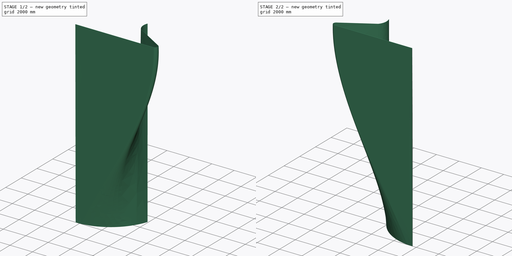
[diagram: build sequence overview — one tinted view per stage of 2, left to right]
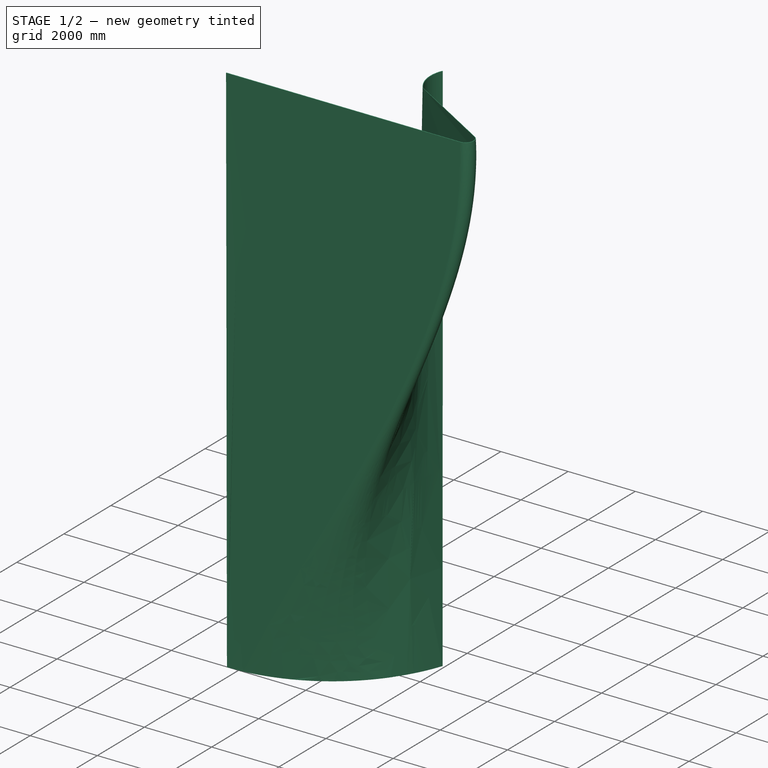
[diagram: stage 1 of 2 — iso view after this stage's code; geometry added in this stage tinted green]
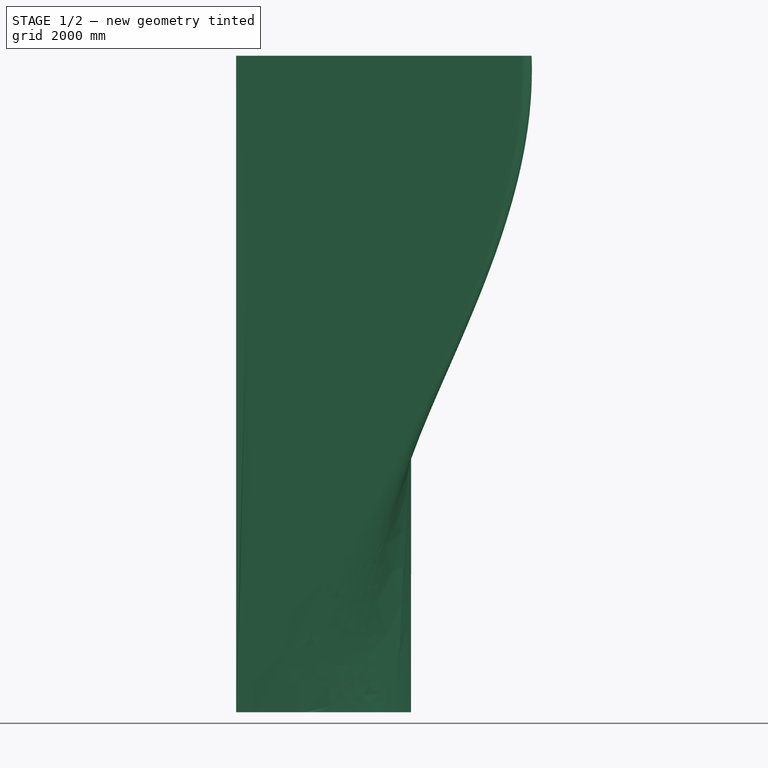
[diagram: stage 1 of 2 — front view after this stage's code; geometry added in this stage tinted green]
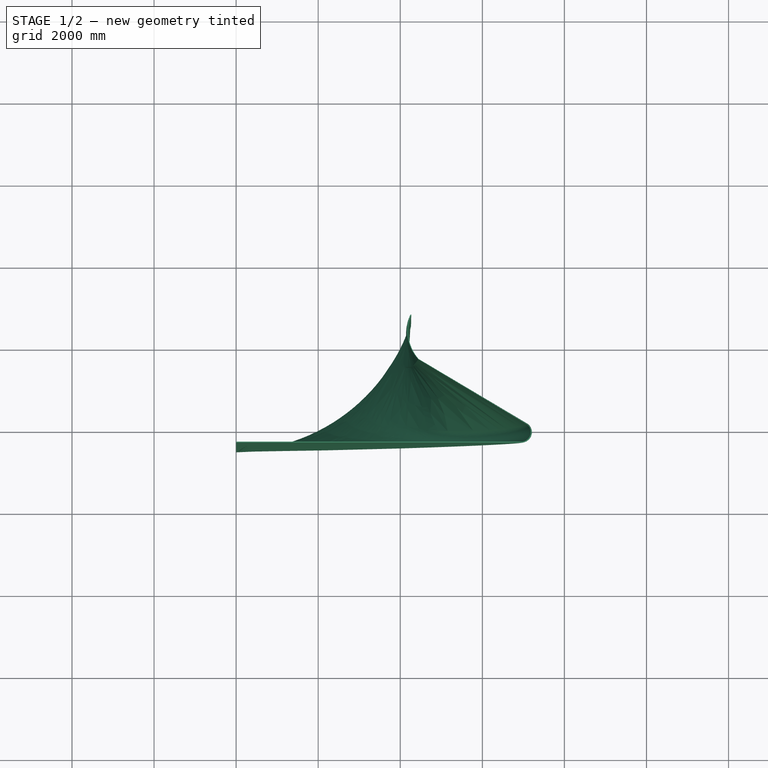
[diagram: stage 1 of 2 — top view after this stage's code; geometry added in this stage tinted green]
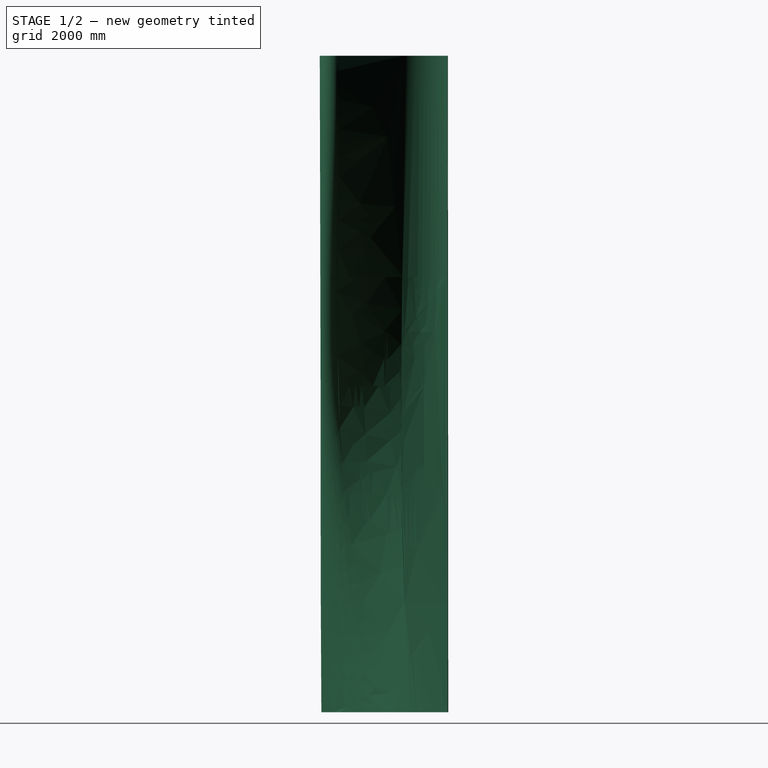
[diagram: stage 1 of 2 — right view after this stage's code; geometry added in this stage tinted green]
FCSTD DOCUMENT  (FreeCAD 0.17R13509 (Git))
Label: test
License: All rights reserved
LicenseURL: http://en.wikipedia.org/wiki/All_rights_reserved
objects: Sketcher::SketchObject×6, Part::Loft×1, Part::Mirroring×1
note: 8 computed .brp shape members not serialized (recipe doc carries the construction recipe); baked Part::Feature solids carry a one-line shape summary decoded from their .brp

FEATURE [Sketcher::SketchObject] Sketch
  sketch-geometry (5):
    g0: Circle CenterX=0 CenterY=0 CenterZ=0 NormalX=0 NormalY=0 NormalZ=1 AngleXU=0 Radius=4500
    g1: LineSegment StartX=0 StartY=-4500 StartZ=0 EndX=7200 EndY=-4500 EndZ=0
    g2: LineSegment StartX=0 StartY=-4500 StartZ=0 EndX=0 EndY=-4530 EndZ=0
    g3: LineSegment StartX=3971.47 StartY=-2122.01 StartZ=0 EndX=3971.47 EndY=-4502.01 EndZ=0
    g4: LineSegment StartX=7200 StartY=-4500 StartZ=0 EndX=7200 EndY=-4017.08 EndZ=0
  constraints (9):
    c: Coincident(g0,g-1)
    c: PointOnObject(g1,g0)
    c: Horizontal(g1)
    c: Coincident(g2,g1)
    c: PointOnObject(g2,g-2)
    c: Vertical(g2)
    c: Vertical(g3)
    c: Coincident(g4,g1)
    c: Vertical(g4)
FEATURE [Sketcher::SketchObject] Sketch001  label="1"
  sketch-geometry (10):
    g0: ArcOfCircle CenterX=6950.18 CenterY=-4281.47 CenterZ=0 NormalX=0 NormalY=0 NormalZ=1 AngleXU=0 Radius=250 StartAngle=4.75272 EndAngle=7.37071
    g1: LineSegment StartX=7066.35 StartY=-4060.1 StartZ=0 EndX=4445.03 EndY=-2494.22 EndZ=0
    g2: LineSegment StartX=6960.26 StartY=-4531.26 StartZ=0 EndX=0 EndY=-4531.26 EndZ=0
    g3: ArcOfCircle CenterX=5232.03 CenterY=-1811.49 CenterZ=0 NormalX=0 NormalY=0 NormalZ=1 AngleXU=0 Radius=1041.87 StartAngle=2.75379 EndAngle=3.85616
    g4: LineSegment StartX=4440.34 StartY=-2502.79 StartZ=0 EndX=7052.31 EndY=-4068.86 EndZ=0
    g5: LineSegment StartX=6959.72 StartY=-4510.77 StartZ=0 EndX=-0.206419 EndY=-4509.82 EndZ=0
    g6: LineSegment StartX=-0.206419 StartY=-4509.82 StartZ=0 EndX=0 EndY=-4531.26 EndZ=0
    g7: ArcOfCircle CenterX=6945.32 CenterY=-4277.1 CenterZ=0 NormalX=0 NormalY=0 NormalZ=1 AngleXU=0 Radius=234.112 StartAngle=4.77393 EndAngle=7.37939
    g8: ArcOfCircle CenterX=5200.72 CenterY=-1805.66 CenterZ=0 NormalX=0 NormalY=0 NormalZ=1 AngleXU=0 Radius=1031.58 StartAngle=2.74812 EndAngle=3.88363
    g9: LineSegment StartX=4247.97 StartY=-1410.15 StartZ=0 EndX=4267.53 EndY=-1417.51 EndZ=0
  constraints (15):
    c: Coincident(g1,g0)
    c: Coincident(g2,g0)
    c: PointOnObject(g2,g-2)
    c: Horizontal(g2)
    c: Radius(g0) = 250
    c: Angle(g0) = 2.61799
    c: PointOnObject(g3,g1)
    c: Coincident(g1,g3)
    c: Coincident(g6,g2)
    c: Coincident(g5,g6)
    c: Coincident(g5,g7)
    c: Coincident(g4,g7)
    c: Coincident(g4,g8)
    c: Coincident(g8,g9)
    c: Coincident(g3,g9)
FEATURE [Sketcher::SketchObject] Sketch002  label="4"
  Placement = pos=(0,0,-16000) rot=(0,0,1;0rad)
  sketch-geometry (4):
    g0: ArcOfCircle CenterX=0 CenterY=0 CenterZ=0 NormalX=0 NormalY=0 NormalZ=1 AngleXU=0 Radius=4499.66 StartAngle=4.7123 EndAngle=5.96559
    g1: ArcOfCircle CenterX=-2.97512 CenterY=10.853 CenterZ=0 NormalX=0 NormalY=0 NormalZ=1 AngleXU=0 Radius=4469.64 StartAngle=4.71297 EndAngle=5.96218
    g2: LineSegment StartX=4238.35 StartY=-1399.41 StartZ=0 EndX=4274.62 EndY=-1405.17 EndZ=0
    g3: LineSegment StartX=-0.378864 StartY=-4458.79 StartZ=0 EndX=-0.378864 EndY=-4499.66 EndZ=0
  constraints (5):
    c: Coincident(g0,g-1)
    c: Coincident(g2,g0)
    c: Coincident(g1,g2)
    c: Coincident(g1,g3)
    c: Coincident(g3,g0)
FEATURE [Sketcher::SketchObject] Sketch003  label="2"
  Placement = pos=(0,0,-2000) rot=(0,0,1;0rad)
  sketch-geometry (10):
    g0: ArcOfCircle CenterX=6821.47 CenterY=-4268.08 CenterZ=0 NormalX=0 NormalY=0 NormalZ=1 AngleXU=0 Radius=250 StartAngle=4.7678 EndAngle=7.38579
    g1: LineSegment StartX=6934.29 StartY=-4044.98 StartZ=0 EndX=4445.69 EndY=-2494.21 EndZ=0
    g2: LineSegment StartX=6835.31 StartY=-4517.7 StartZ=0 EndX=0 EndY=-4517.7 EndZ=0
    g3: ArcOfCircle CenterX=5231.86 CenterY=-1811.96 CenterZ=0 NormalX=0 NormalY=0 NormalZ=1 AngleXU=0 Radius=1040.93 StartAngle=2.75379 EndAngle=3.85634
    g4: LineSegment StartX=0 StartY=-4517.7 StartZ=0 EndX=-0.205376 EndY=-4475.69 EndZ=0
    g5: LineSegment StartX=-0.205376 StartY=-4475.69 StartZ=0 EndX=6838.16 EndY=-4488.99 EndZ=0
    g6: ArcOfCircle CenterX=6816.08 CenterY=-4280.65 CenterZ=0 NormalX=0 NormalY=0 NormalZ=1 AngleXU=0 Radius=209.506 StartAngle=4.81796 EndAngle=7.39926
    g7: LineSegment StartX=6908.1 StartY=-4092.43 StartZ=0 EndX=4417.59 EndY=-2528.96 EndZ=0
    g8: ArcOfCircle CenterX=5196.99 CenterY=-1822.58 CenterZ=0 NormalX=0 NormalY=0 NormalZ=1 AngleXU=0 Radius=1051.88 StartAngle=2.73116 EndAngle=3.87788
    g9: LineSegment StartX=4232.47 StartY=-1402.88 StartZ=0 EndX=4268.23 EndY=-1418.33 EndZ=0
  constraints (15):
    c: Coincident(g1,g0)
    c: Coincident(g2,g0)
    c: PointOnObject(g2,g-2)
    c: Horizontal(g2)
    c: Radius(g0) = 250
    c: Angle(g0) = 2.61799
    c: PointOnObject(g3,g1)
    c: Coincident(g1,g3)
    c: Coincident(g4,g5)
    c: Coincident(g3,g9)
    c: Coincident(g8,g9)
    c: Coincident(g8,g7)
    c: Coincident(g6,g7)
    c: Coincident(g5,g6)
    c: Coincident(g2,g4)
FEATURE [Sketcher::SketchObject] Sketch004  label="3"
  Placement = pos=(0,0,-10000) rot=(0,0,1;0rad)
  sketch-geometry (10):
    g0: ArcOfCircle CenterX=3700.57 CenterY=-4012 CenterZ=0 NormalX=0 NormalY=0 NormalZ=1 AngleXU=0 Radius=500 StartAngle=4.78422 EndAngle=6.35502
    g1: LineSegment StartX=4199.28 StartY=-3976.11 StartZ=0 EndX=4225.9 EndY=-2537.19 EndZ=0
    g2: LineSegment StartX=3736.46 StartY=-4510.71 StartZ=0 EndX=0 EndY=-4510.71 EndZ=0
    g3: ArcOfCircle CenterX=9687.22 CenterY=-2142.79 CenterZ=0 NormalX=0 NormalY=0 NormalZ=1 AngleXU=0 Radius=5475.54 StartAngle=3.00961 EndAngle=3.21368
    g4: LineSegment StartX=0 StartY=-4510.71 StartZ=0 EndX=-0.084267 EndY=-4467.08 EndZ=0
    g5: LineSegment StartX=-0.084267 StartY=-4467.08 StartZ=0 EndX=3733.74 EndY=-4493.1 EndZ=0
    g6: ArcOfCircle CenterX=3675.66 CenterY=-3989.85 CenterZ=0 NormalX=0 NormalY=0 NormalZ=1 AngleXU=0 Radius=506.589 StartAngle=4.8273 EndAngle=6.3216
    g7: LineSegment StartX=4181.87 StartY=-3970.4 StartZ=0 EndX=4193.71 EndY=-2533.48 EndZ=0
    g8: ArcOfCircle CenterX=9585.51 CenterY=-2200.75 CenterZ=0 NormalX=0 NormalY=0 NormalZ=1 AngleXU=0 Radius=5402.05 StartAngle=2.99597 EndAngle=3.20322
    g9: LineSegment StartX=4240.63 StartY=-1416.87 StartZ=0 EndX=4259.3 EndY=-1422.2 EndZ=0
  constraints (15):
    c: Coincident(g1,g0)
    c: Coincident(g2,g0)
    c: PointOnObject(g2,g-2)
    c: Horizontal(g2)
    c: Radius(g0) = 500
    c: PointOnObject(g3,g1)
    c: Coincident(g1,g3)
    c: Angle(g0) = 1.5708
    c: Coincident(g7,g8)
    c: Coincident(g9,g8)
    c: Coincident(g3,g9)
    c: Coincident(g6,g7)
    c: Coincident(g6,g5)
    c: Coincident(g4,g5)
    c: Coincident(g2,g4)
FEATURE [Sketcher::SketchObject] Sketch005  label="4b"
  Placement = pos=(0,0,-16000) rot=(0,0,1;0rad)
  sketch-geometry (10):
    g0: ArcOfCircle CenterX=128.259 CenterY=-19.4187 CenterZ=0 NormalX=0 NormalY=0 NormalZ=1 AngleXU=0 Radius=4362.86 StartAngle=5.72794 EndAngle=5.9574
    g1: LineSegment StartX=3835.7 StartY=-2319.29 StartZ=0 EndX=3596.69 EndY=-2680.07 EndZ=0
    g2: ArcOfCircle CenterX=0.364116 CenterY=-8.92071 CenterZ=0 NormalX=0 NormalY=0 NormalZ=1 AngleXU=0 Radius=4479.79 StartAngle=4.81457 EndAngle=5.64434
    g3: LineSegment StartX=457.307 StartY=-4465.35 StartZ=0 EndX=-0.011144 EndY=-4492.76 EndZ=0
    g4: LineSegment StartX=-0.011144 StartY=-4492.76 StartZ=0 EndX=-0.035145 EndY=-4456.49 EndZ=0
    g5: LineSegment StartX=-0.035145 StartY=-4456.49 StartZ=0 EndX=89.7661 EndY=-4451.32 EndZ=0
    g6: ArcOfCircle CenterX=-23.1098 CenterY=39.0629 CenterZ=0 NormalX=0 NormalY=0 NormalZ=1 AngleXU=0 Radius=4491.8 StartAngle=4.73752 EndAngle=5.63913
    g7: LineSegment StartX=3568.84 StartY=-2658 StartZ=0 EndX=3804.77 EndY=-2306.3 EndZ=0
    g8: ArcOfCircle CenterX=837.563 CenterY=-373.043 CenterZ=0 NormalX=0 NormalY=0 NormalZ=1 AngleXU=0 Radius=3541.45 StartAngle=5.70573 EndAngle=5.98861
    g9: LineSegment StartX=4226.46 StartY=-1401.25 StartZ=0 EndX=4261.62 EndY=-1415.78 EndZ=0
  constraints (10):
    c: Coincident(g8,g9)
    c: Coincident(g0,g9)
    c: Coincident(g1,g0)
    c: Coincident(g7,g8)
    c: Coincident(g6,g7)
    c: Coincident(g1,g2)
    c: Coincident(g2,g3)
    c: Coincident(g5,g6)
    c: Coincident(g5,g4)
    c: Coincident(g3,g4)
FEATURE [Part::Loft] Loft
  Closed = false
  MaxDegree = 5
  Ruled = false
  Sections = -> [Sketch001,Sketch003,Sketch004,Sketch005]
  Solid = true
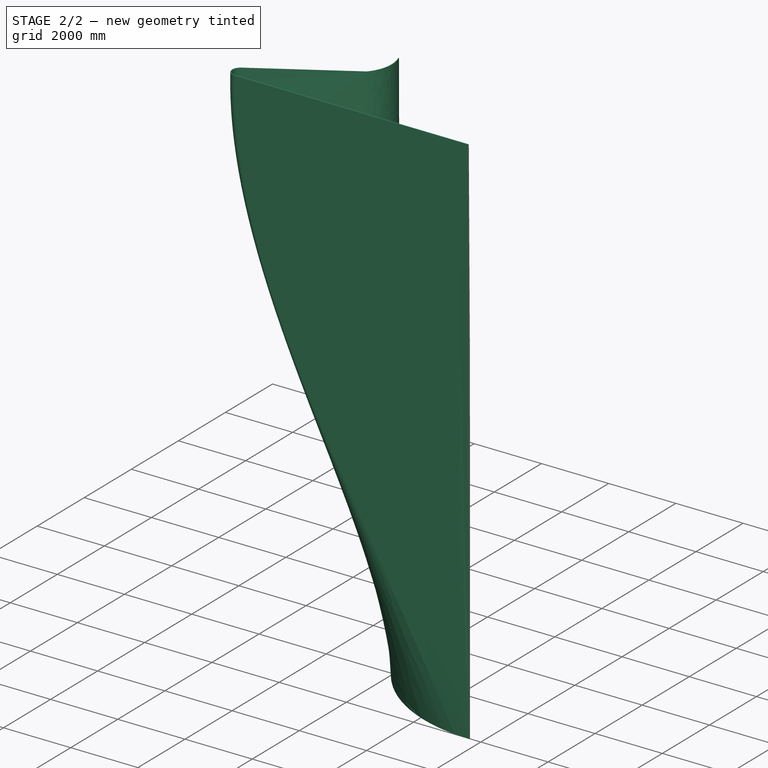
[diagram: stage 2 of 2 — iso view after this stage's code; geometry added in this stage tinted green]
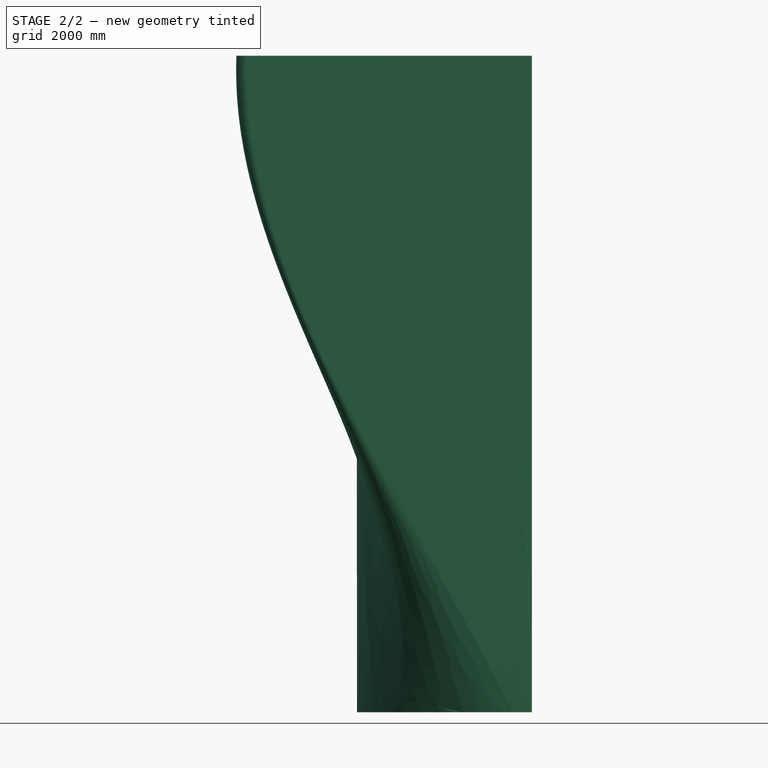
[diagram: stage 2 of 2 — front view after this stage's code; geometry added in this stage tinted green]
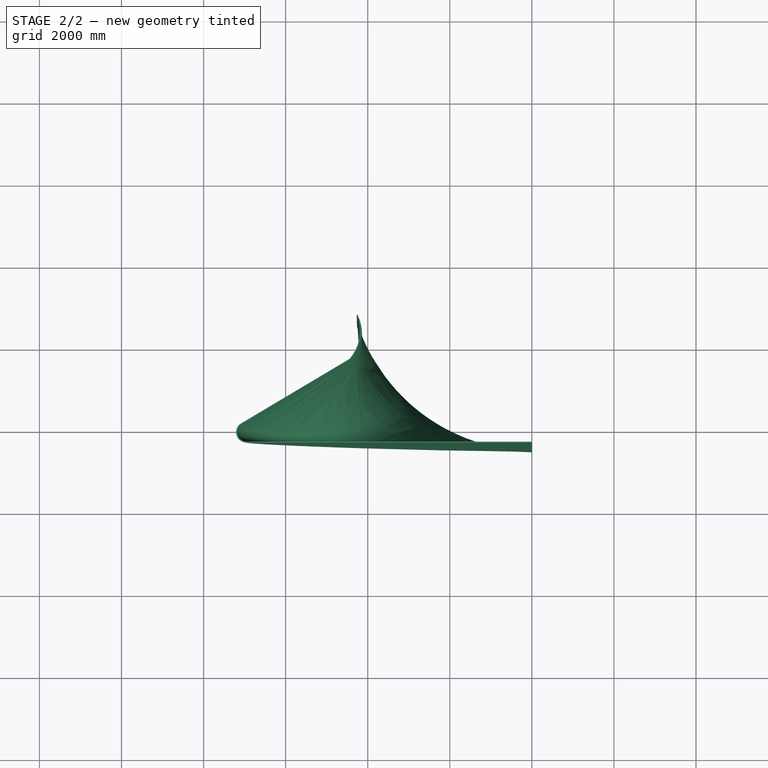
[diagram: stage 2 of 2 — top view after this stage's code; geometry added in this stage tinted green]
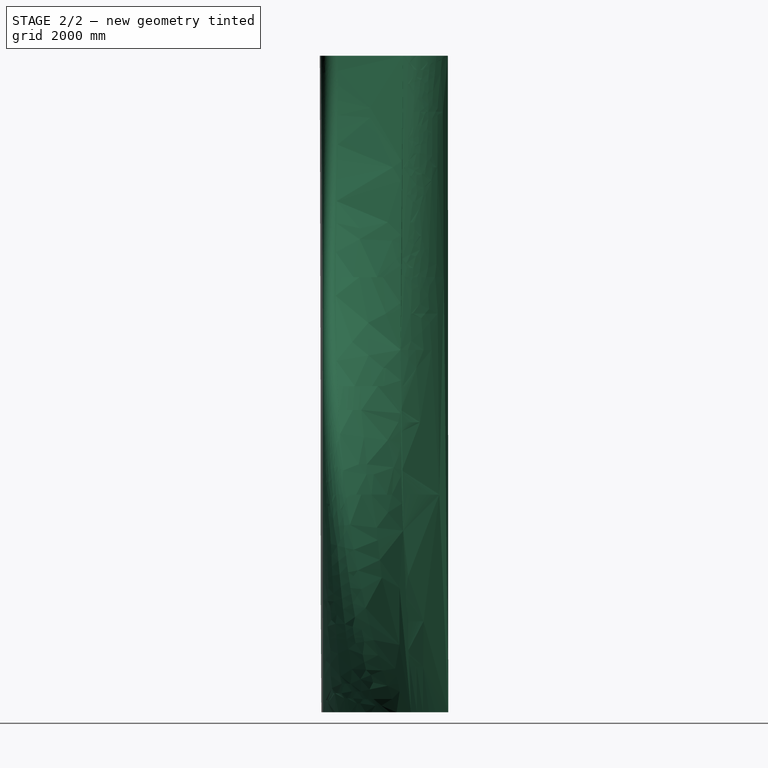
[diagram: stage 2 of 2 — right view after this stage's code; geometry added in this stage tinted green]
FEATURE [Part::Mirroring] Part__Mirroring  label="Loft (Mirror #1)"
  Base = (0,0,0)
  Normal = (1,0,0)
  Source = -> Loft
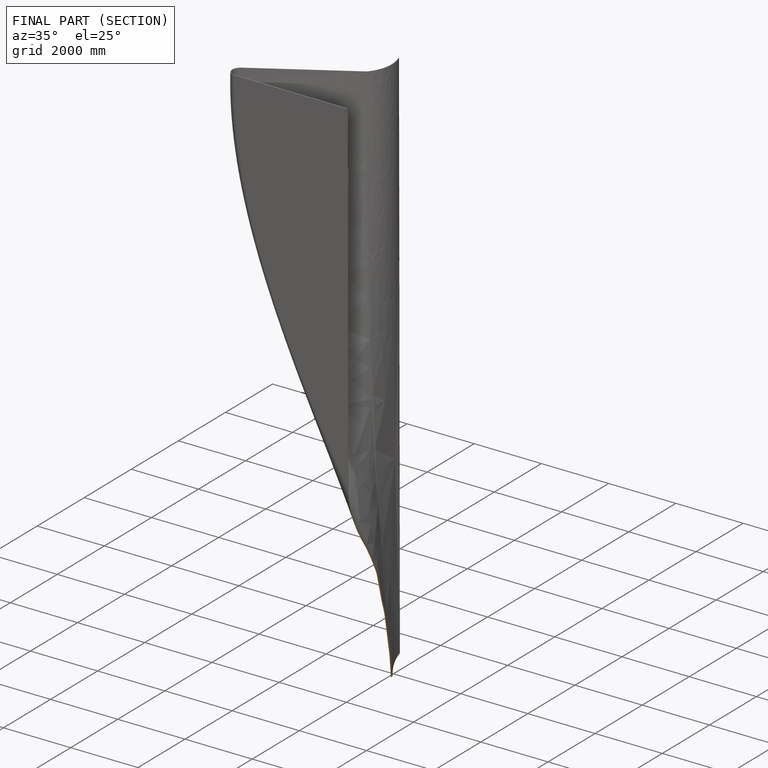
[diagram: finished part — half-section view (interior)]
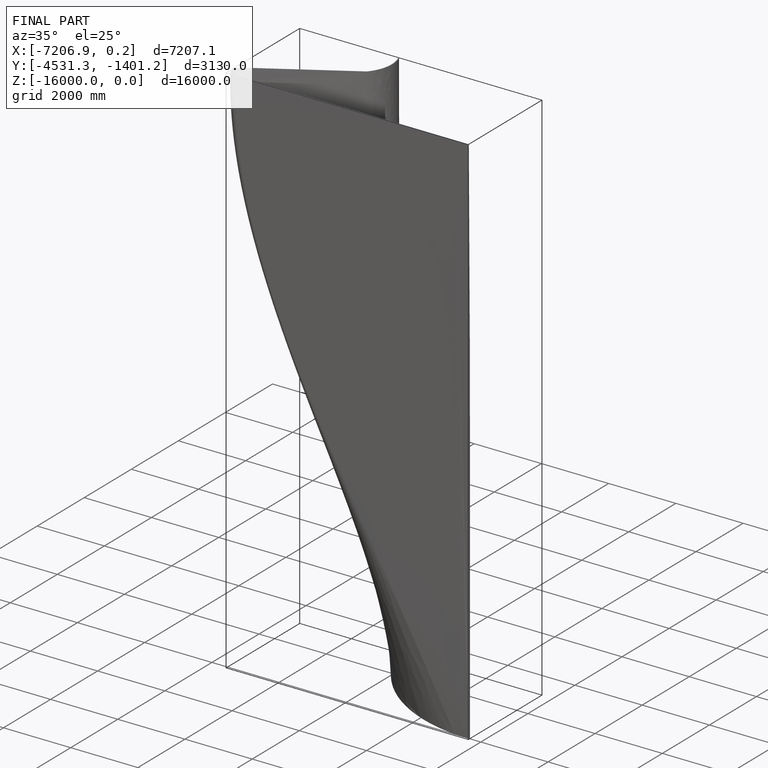
[diagram: finished part — iso view with bounding-box wireframe]
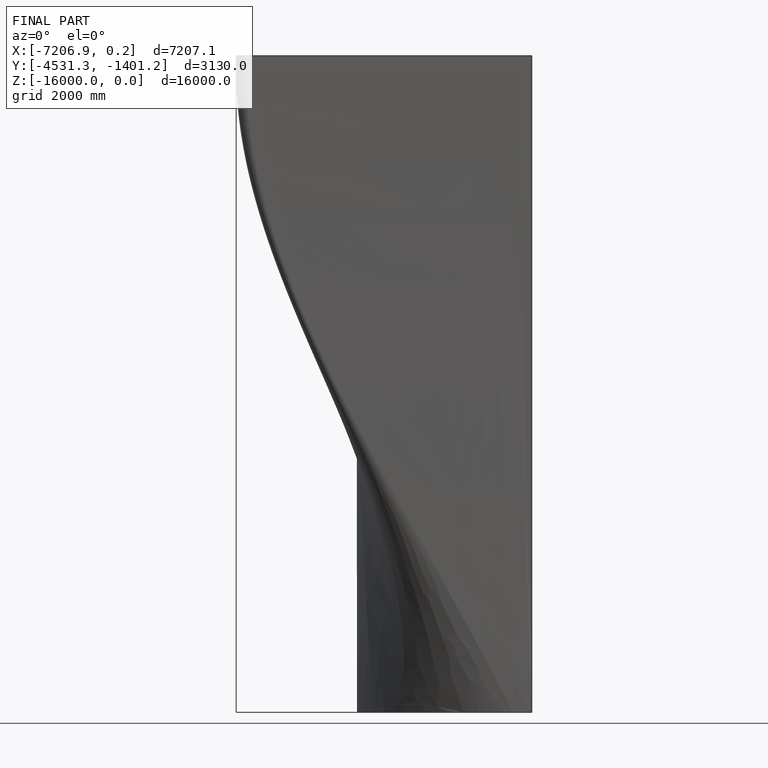
[diagram: finished part — front view with bounding-box wireframe]
